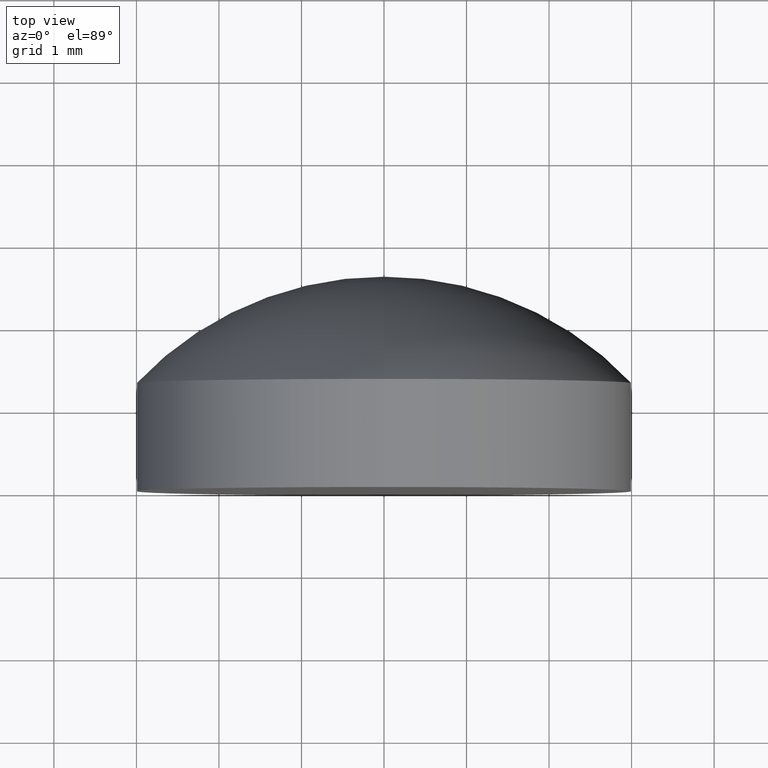
[diagram: clean part render]
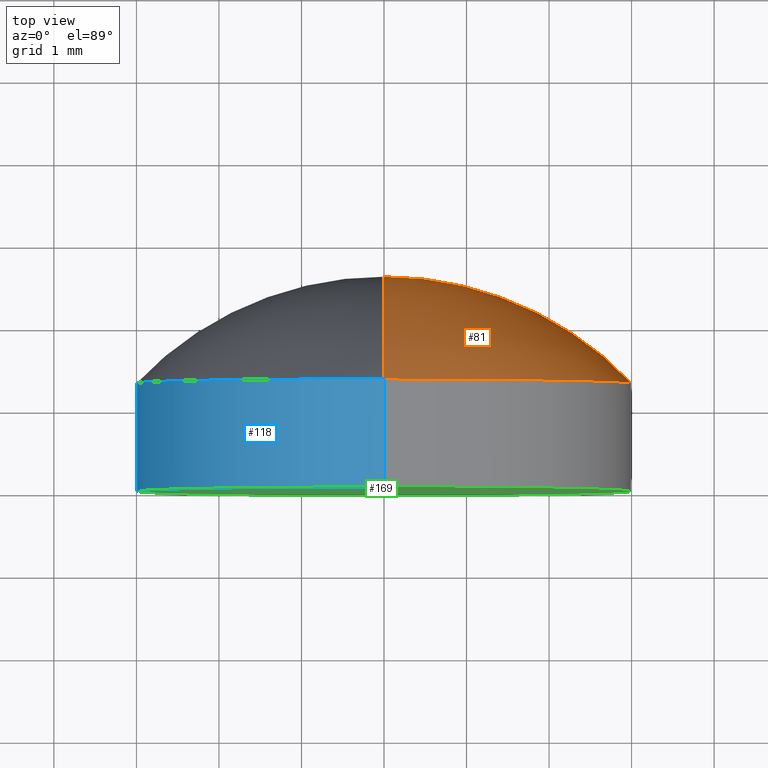
[diagram: same view with three faces highlighted in distinct colors, each labeled with its STEP entity id]
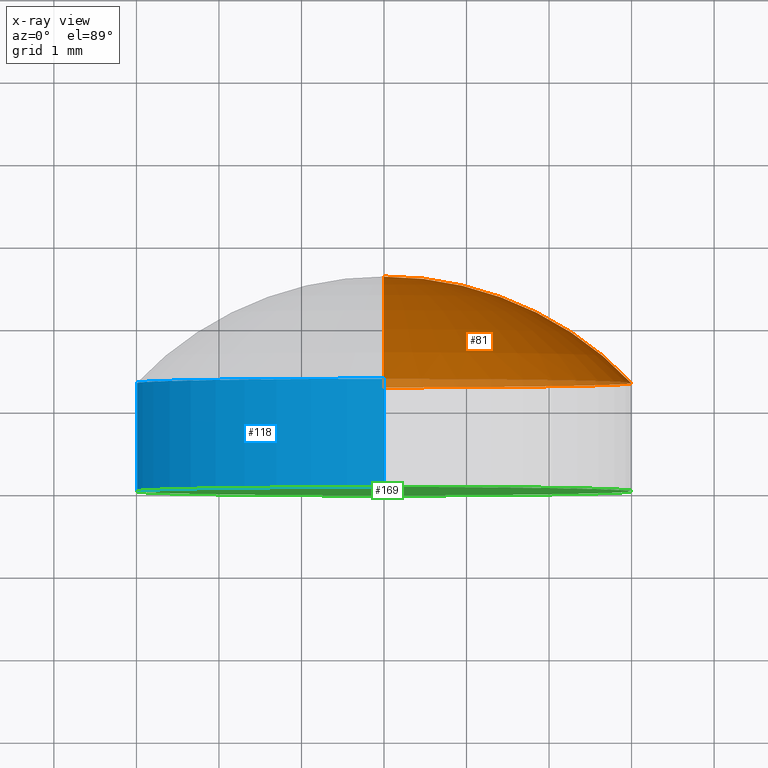
[diagram: x-ray of the same camera — body ghosted, the three highlighted faces saturated]
A machine part, top view with three faces highlighted in distinct colors.
The next image is the same camera in x-ray (body ghosted, the three faces saturated) — at least one of them is partly hidden behind the body in this view.
Their STEP definitions:

[orange] entity #81 — the highlighted toroidal blend (fillet) surface has major radius 0.0015 mm and minor (blend) radius 4.13 mm.
#4 = CIRCLE ( 'NONE', #167, 3.000000000000000000 ) ;
#24 = CARTESIAN_POINT ( 'NONE',  ( 1.775871919268154040E-19, -1.529999745421605661, -0.001450109468709333271 ) ) ;
#26 = DIRECTION ( 'NONE',  ( -1.000000000000000000, 0.000000000000000000, 0.000000000000000000 ) ) ;
#27 = CARTESIAN_POINT ( 'NONE',  ( 3.673940397442059868E-16, 1.309999999999999609, -3.000000000000000000 ) ) ;
#28 = CARTESIAN_POINT ( 'NONE',  ( 0.000000000000000000, 2.600000000000000089, 0.000000000000000000 ) ) ;
#34 = ORIENTED_EDGE ( 'NONE', *, *, #113, .T. ) ;
#37 = AXIS2_PLACEMENT_3D ( 'NONE', #88, #26, #117 ) ;
#52 = FACE_OUTER_BOUND ( 'NONE', #95, .T. ) ;
#53 = DIRECTION ( 'NONE',  ( 0.000000000000000000, 0.000000000000000000, 1.000000000000000000 ) ) ;
#57 = AXIS2_PLACEMENT_3D ( 'NONE', #24, #105, #166 ) ;
#62 = TOROIDAL_SURFACE ( 'NONE', #178, 0.001450109468709333271, 4.129999999999999893 ) ;
#78 = CARTESIAN_POINT ( 'NONE',  ( 0.000000000000000000, 1.309999999999999609, 3.000000000000000000 ) ) ;
#81 = ADVANCED_FACE ( 'NONE', ( #52 ), #62, .T. ) ;
#85 = VERTEX_POINT ( 'NONE', #28 ) ;
#88 = CARTESIAN_POINT ( 'NONE',  ( 0.000000000000000000, -1.529999745421605661, 0.001450109468709333271 ) ) ;
#95 = EDGE_LOOP ( 'NONE', ( #34, #159, #191 ) ) ;
#102 = EDGE_CURVE ( 'NONE', #193, #85, #150, .T. ) ;
#105 = DIRECTION ( 'NONE',  ( 1.000000000000000000, 0.000000000000000000, 1.224646799147353207E-16 ) ) ;
#113 = EDGE_CURVE ( 'NONE', #193, #129, #4, .T. ) ;
#117 = DIRECTION ( 'NONE',  ( 0.000000000000000000, 0.000000000000000000, 1.000000000000000000 ) ) ;
#119 = CARTESIAN_POINT ( 'NONE',  ( 0.000000000000000000, -1.529999745421605661, 0.000000000000000000 ) ) ;
#121 = DIRECTION ( 'NONE',  ( -0.000000000000000000, 1.000000000000000000, -0.000000000000000000 ) ) ;
#129 = VERTEX_POINT ( 'NONE', #27 ) ;
#141 = EDGE_CURVE ( 'NONE', #129, #85, #144, .T. ) ;
#144 = CIRCLE ( 'NONE', #57, 4.129999999999999893 ) ;
#150 = CIRCLE ( 'NONE', #37, 4.129999999999999893 ) ;
#159 = ORIENTED_EDGE ( 'NONE', *, *, #141, .T. ) ;
#163 = CARTESIAN_POINT ( 'NONE',  ( 0.000000000000000000, 1.309999999999999609, 0.000000000000000000 ) ) ;
#165 = DIRECTION ( 'NONE',  ( 0.000000000000000000, 0.000000000000000000, 1.000000000000000000 ) ) ;
#166 = DIRECTION ( 'NONE',  ( 1.224646799147353207E-16, 0.000000000000000000, -1.000000000000000000 ) ) ;
#167 = AXIS2_PLACEMENT_3D ( 'NONE', #163, #121, #165 ) ;
#178 = AXIS2_PLACEMENT_3D ( 'NONE', #119, #181, #53 ) ;
#181 = DIRECTION ( 'NONE',  ( -0.000000000000000000, 1.000000000000000000, -0.000000000000000000 ) ) ;
#191 = ORIENTED_EDGE ( 'NONE', *, *, #102, .F. ) ;
#193 = VERTEX_POINT ( 'NONE', #78 ) ;

[blue] entity #118 — the highlighted cylindrical surface (partial cylindrical patch) has radius 3 mm, axis along (-0, 1, -0).
#12 = LINE ( 'NONE', #198, #51 ) ;
#15 = FACE_OUTER_BOUND ( 'NONE', #35, .T. ) ;
#16 = LINE ( 'NONE', #139, #66 ) ;
#17 = DIRECTION ( 'NONE',  ( -0.000000000000000000, 1.000000000000000000, -0.000000000000000000 ) ) ;
#20 = DIRECTION ( 'NONE',  ( 0.000000000000000000, 0.000000000000000000, 1.000000000000000000 ) ) ;
#22 = VERTEX_POINT ( 'NONE', #54 ) ;
#27 = CARTESIAN_POINT ( 'NONE',  ( 3.673940397442059868E-16, 1.309999999999999609, -3.000000000000000000 ) ) ;
#35 = EDGE_LOOP ( 'NONE', ( #50, #114, #68, #145 ) ) ;
#42 = CARTESIAN_POINT ( 'NONE',  ( 0.000000000000000000, 2.600000000000000089, 0.000000000000000000 ) ) ;
#43 = CIRCLE ( 'NONE', #104, 3.000000000000000000 ) ;
#44 = EDGE_CURVE ( 'NONE', #129, #193, #195, .T. ) ;
#50 = ORIENTED_EDGE ( 'NONE', *, *, #63, .F. ) ;
#51 = VECTOR ( 'NONE', #103, 1000.000000000000000 ) ;
#54 = CARTESIAN_POINT ( 'NONE',  ( 0.000000000000000000, -4.336808689942017736E-16, 3.000000000000000000 ) ) ;
#63 = EDGE_CURVE ( 'NONE', #98, #129, #12, .T. ) ;
#66 = VECTOR ( 'NONE', #17, 1000.000000000000000 ) ;
#68 = ORIENTED_EDGE ( 'NONE', *, *, #174, .T. ) ;
#73 = CYLINDRICAL_SURFACE ( 'NONE', #116, 3.000000000000000000 ) ;
#78 = CARTESIAN_POINT ( 'NONE',  ( 0.000000000000000000, 1.309999999999999609, 3.000000000000000000 ) ) ;
#92 = DIRECTION ( 'NONE',  ( -0.000000000000000000, 1.000000000000000000, -0.000000000000000000 ) ) ;
#98 = VERTEX_POINT ( 'NONE', #120 ) ;
#103 = DIRECTION ( 'NONE',  ( -0.000000000000000000, 1.000000000000000000, -0.000000000000000000 ) ) ;
#104 = AXIS2_PLACEMENT_3D ( 'NONE', #154, #92, #20 ) ;
#107 = DIRECTION ( 'NONE',  ( 0.000000000000000000, 0.000000000000000000, 1.000000000000000000 ) ) ;
#109 = AXIS2_PLACEMENT_3D ( 'NONE', #185, #135, #107 ) ;
#114 = ORIENTED_EDGE ( 'NONE', *, *, #192, .T. ) ;
#116 = AXIS2_PLACEMENT_3D ( 'NONE', #42, #184, #137 ) ;
#118 = ADVANCED_FACE ( 'NONE', ( #15 ), #73, .T. ) ;
#120 = CARTESIAN_POINT ( 'NONE',  ( 3.673940397442059868E-16, -4.336808689942017736E-16, -3.000000000000000000 ) ) ;
#129 = VERTEX_POINT ( 'NONE', #27 ) ;
#135 = DIRECTION ( 'NONE',  ( -0.000000000000000000, 1.000000000000000000, -0.000000000000000000 ) ) ;
#137 = DIRECTION ( 'NONE',  ( 0.000000000000000000, 0.000000000000000000, 1.000000000000000000 ) ) ;
#139 = CARTESIAN_POINT ( 'NONE',  ( 0.000000000000000000, 2.600000000000000089, 3.000000000000000000 ) ) ;
#145 = ORIENTED_EDGE ( 'NONE', *, *, #44, .F. ) ;
#154 = CARTESIAN_POINT ( 'NONE',  ( 0.000000000000000000, -4.336808689942017736E-16, 0.000000000000000000 ) ) ;
#174 = EDGE_CURVE ( 'NONE', #22, #193, #16, .T. ) ;
#184 = DIRECTION ( 'NONE',  ( -0.000000000000000000, 1.000000000000000000, -0.000000000000000000 ) ) ;
#185 = CARTESIAN_POINT ( 'NONE',  ( 0.000000000000000000, 1.309999999999999609, 0.000000000000000000 ) ) ;
#192 = EDGE_CURVE ( 'NONE', #98, #22, #43, .T. ) ;
#193 = VERTEX_POINT ( 'NONE', #78 ) ;
#195 = CIRCLE ( 'NONE', #109, 3.000000000000000000 ) ;
#198 = CARTESIAN_POINT ( 'NONE',  ( 3.673940397442059868E-16, 2.600000000000000089, -3.000000000000000000 ) ) ;

[green] entity #169 — the highlighted planar face has unit normal (0, -1, 0).
#9 = FACE_OUTER_BOUND ( 'NONE', #127, .T. ) ;
#11 = EDGE_CURVE ( 'NONE', #22, #98, #126, .T. ) ;
#20 = DIRECTION ( 'NONE',  ( 0.000000000000000000, 0.000000000000000000, 1.000000000000000000 ) ) ;
#21 = AXIS2_PLACEMENT_3D ( 'NONE', #149, #69, #171 ) ;
#22 = VERTEX_POINT ( 'NONE', #54 ) ;
#25 = DIRECTION ( 'NONE',  ( 0.000000000000000000, 0.000000000000000000, 1.000000000000000000 ) ) ;
#43 = CIRCLE ( 'NONE', #104, 3.000000000000000000 ) ;
#54 = CARTESIAN_POINT ( 'NONE',  ( 0.000000000000000000, -4.336808689942017736E-16, 3.000000000000000000 ) ) ;
#69 = DIRECTION ( 'NONE',  ( 0.000000000000000000, -1.000000000000000000, 0.000000000000000000 ) ) ;
#79 = AXIS2_PLACEMENT_3D ( 'NONE', #180, #101, #25 ) ;
#92 = DIRECTION ( 'NONE',  ( -0.000000000000000000, 1.000000000000000000, -0.000000000000000000 ) ) ;
#98 = VERTEX_POINT ( 'NONE', #120 ) ;
#101 = DIRECTION ( 'NONE',  ( -0.000000000000000000, 1.000000000000000000, -0.000000000000000000 ) ) ;
#104 = AXIS2_PLACEMENT_3D ( 'NONE', #154, #92, #20 ) ;
#120 = CARTESIAN_POINT ( 'NONE',  ( 3.673940397442059868E-16, -4.336808689942017736E-16, -3.000000000000000000 ) ) ;
#126 = CIRCLE ( 'NONE', #79, 3.000000000000000000 ) ;
#127 = EDGE_LOOP ( 'NONE', ( #175, #131 ) ) ;
#131 = ORIENTED_EDGE ( 'NONE', *, *, #192, .F. ) ;
#136 = PLANE ( 'NONE',  #21 ) ;
#149 = CARTESIAN_POINT ( 'NONE',  ( 0.000000000000000000, -1.836970198721030181E-16, 0.000000000000000000 ) ) ;
#154 = CARTESIAN_POINT ( 'NONE',  ( 0.000000000000000000, -4.336808689942017736E-16, 0.000000000000000000 ) ) ;
#169 = ADVANCED_FACE ( 'NONE', ( #9 ), #136, .T. ) ;
#171 = DIRECTION ( 'NONE',  ( 0.000000000000000000, -0.000000000000000000, -1.000000000000000000 ) ) ;
#175 = ORIENTED_EDGE ( 'NONE', *, *, #11, .F. ) ;
#180 = CARTESIAN_POINT ( 'NONE',  ( 0.000000000000000000, -4.336808689942017736E-16, 0.000000000000000000 ) ) ;
#192 = EDGE_CURVE ( 'NONE', #98, #22, #43, .T. ) ;